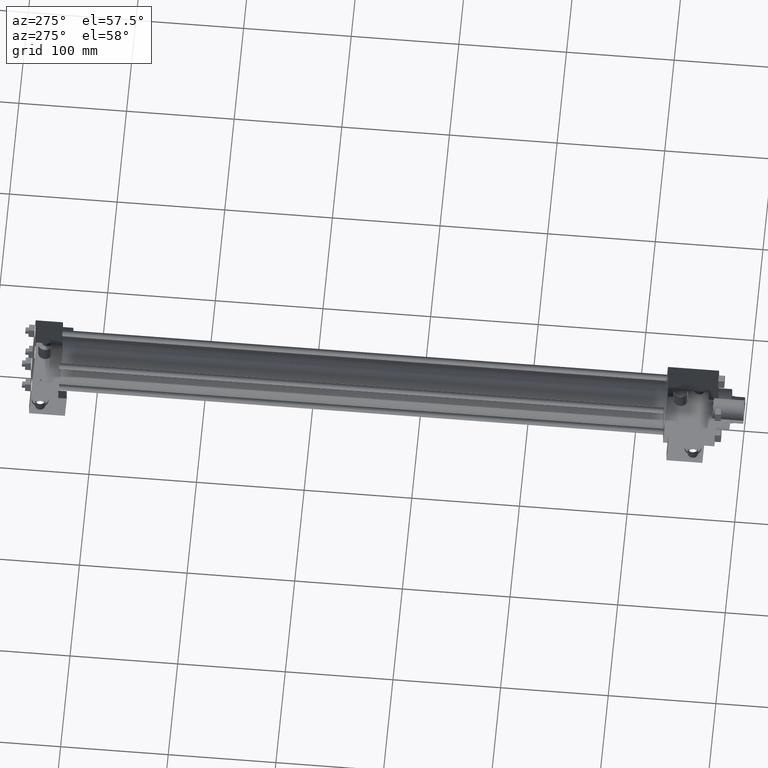
[diagram: clean part render]
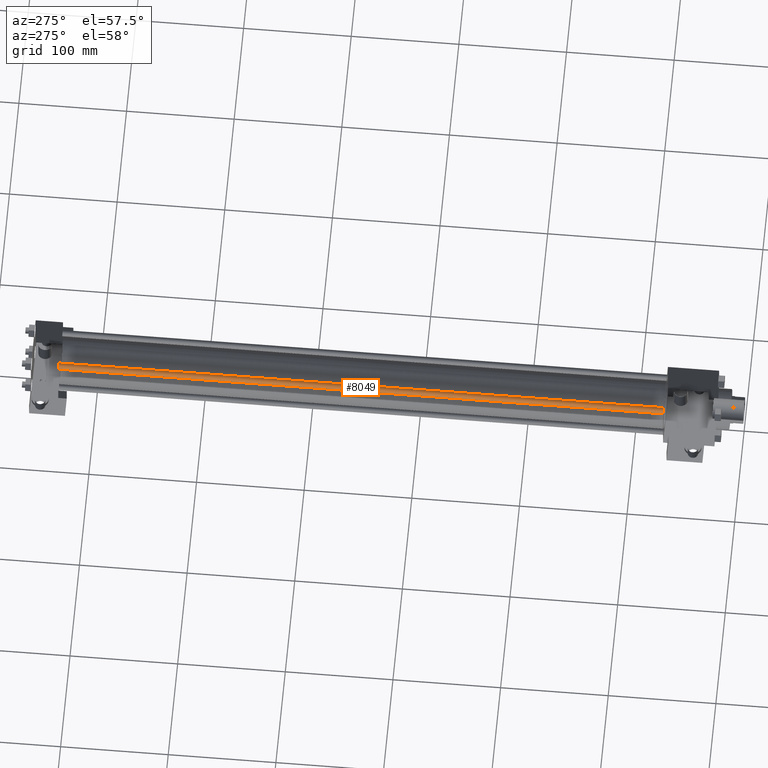
[diagram: same view with one face highlighted and labeled with its STEP entity id]
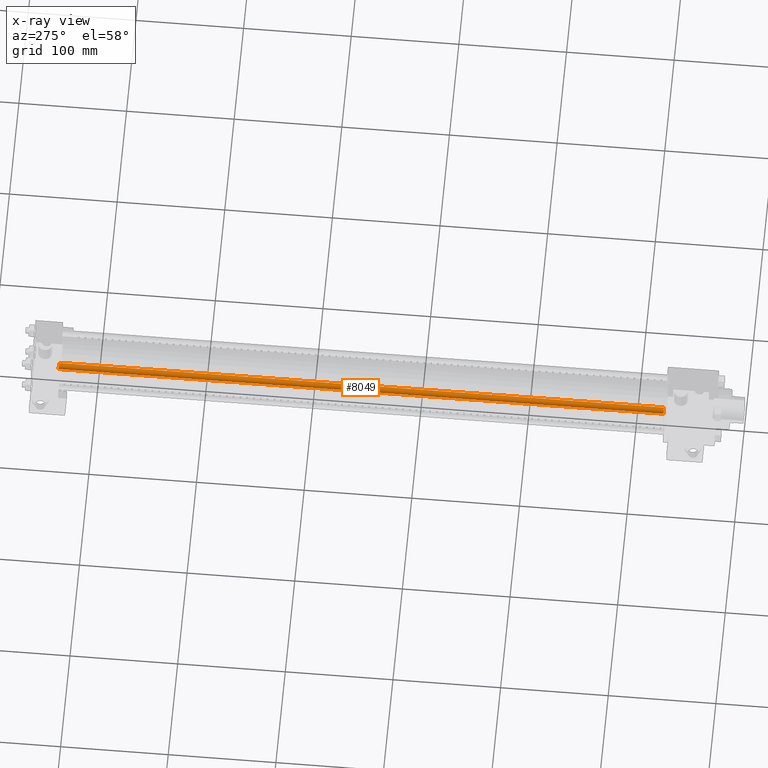
[diagram: x-ray of the same camera — body ghosted, the highlighted face saturated]
A machine part, auxiliary view. The second image highlights one B-rep face of the part: STEP entity #8049.
The next image is the same camera in x-ray: the body ghosted, the highlighted face saturated — about 0% of this face is hidden behind the body in this view.
In plain terms, the highlighted cylindrical surface (bore or boss wall) has radius 2.8575 mm, axis along (0, -1, 0).
Its self-contained STEP definition (entity closure, byte-faithful):
#509=EDGE_CURVE('',#515,#515,#510,.T.);
#510=CIRCLE('',#511,2.857500000E+000);
#511=AXIS2_PLACEMENT_3D('',#512,#513,#514);
#512=CARTESIAN_POINT('',(-1.816100000E+001,7.302500000E+001,1.816100000E+001));
#513=DIRECTION('',(0.0E+000,1.0E+000,0.0E+000));
#514=DIRECTION('',(-1.0E+000,0.0E+000,0.0E+000));
#515=VERTEX_POINT('',#516);
#516=CARTESIAN_POINT('',(-2.101850000E+001,7.302500000E+001,1.816100000E+001));
#2833=FACE_OUTER_BOUND('',#2835,.T.);
#2834=FACE_BOUND('',#2836,.T.);
#2835=EDGE_LOOP('',(#2837));
#2836=EDGE_LOOP('',(#2838));
#2837=ORIENTED_EDGE('',*,*,#2892,.F.);
#2838=ORIENTED_EDGE('',*,*,#509,.T.);
#2839=CYLINDRICAL_SURFACE('',#2840,2.857500000E+000);
#2840=AXIS2_PLACEMENT_3D('',#2841,#2842,#2843);
#2841=CARTESIAN_POINT('',(-1.816100000E+001,6.350000000E+002,1.816100000E+001));
#2842=DIRECTION('',(0.0E+000,-1.0E+000,0.0E+000));
#2843=DIRECTION('',(0.0E+000,0.0E+000,-1.0E+000));
#2892=EDGE_CURVE('',#2898,#2898,#2893,.T.);
#2893=CIRCLE('',#2894,2.857500000E+000);
#2894=AXIS2_PLACEMENT_3D('',#2895,#2896,#2897);
#2895=CARTESIAN_POINT('',(-1.816100000E+001,6.350000000E+002,1.816100000E+001));
#2896=DIRECTION('',(0.0E+000,1.0E+000,0.0E+000));
#2897=DIRECTION('',(1.0E+000,0.0E+000,0.0E+000));
#2898=VERTEX_POINT('',#2899);
#2899=CARTESIAN_POINT('',(-1.530350000E+001,6.350000000E+002,1.816100000E+001));
#8049=ADVANCED_FACE('',(#2833,#2834),#2839,.T.);